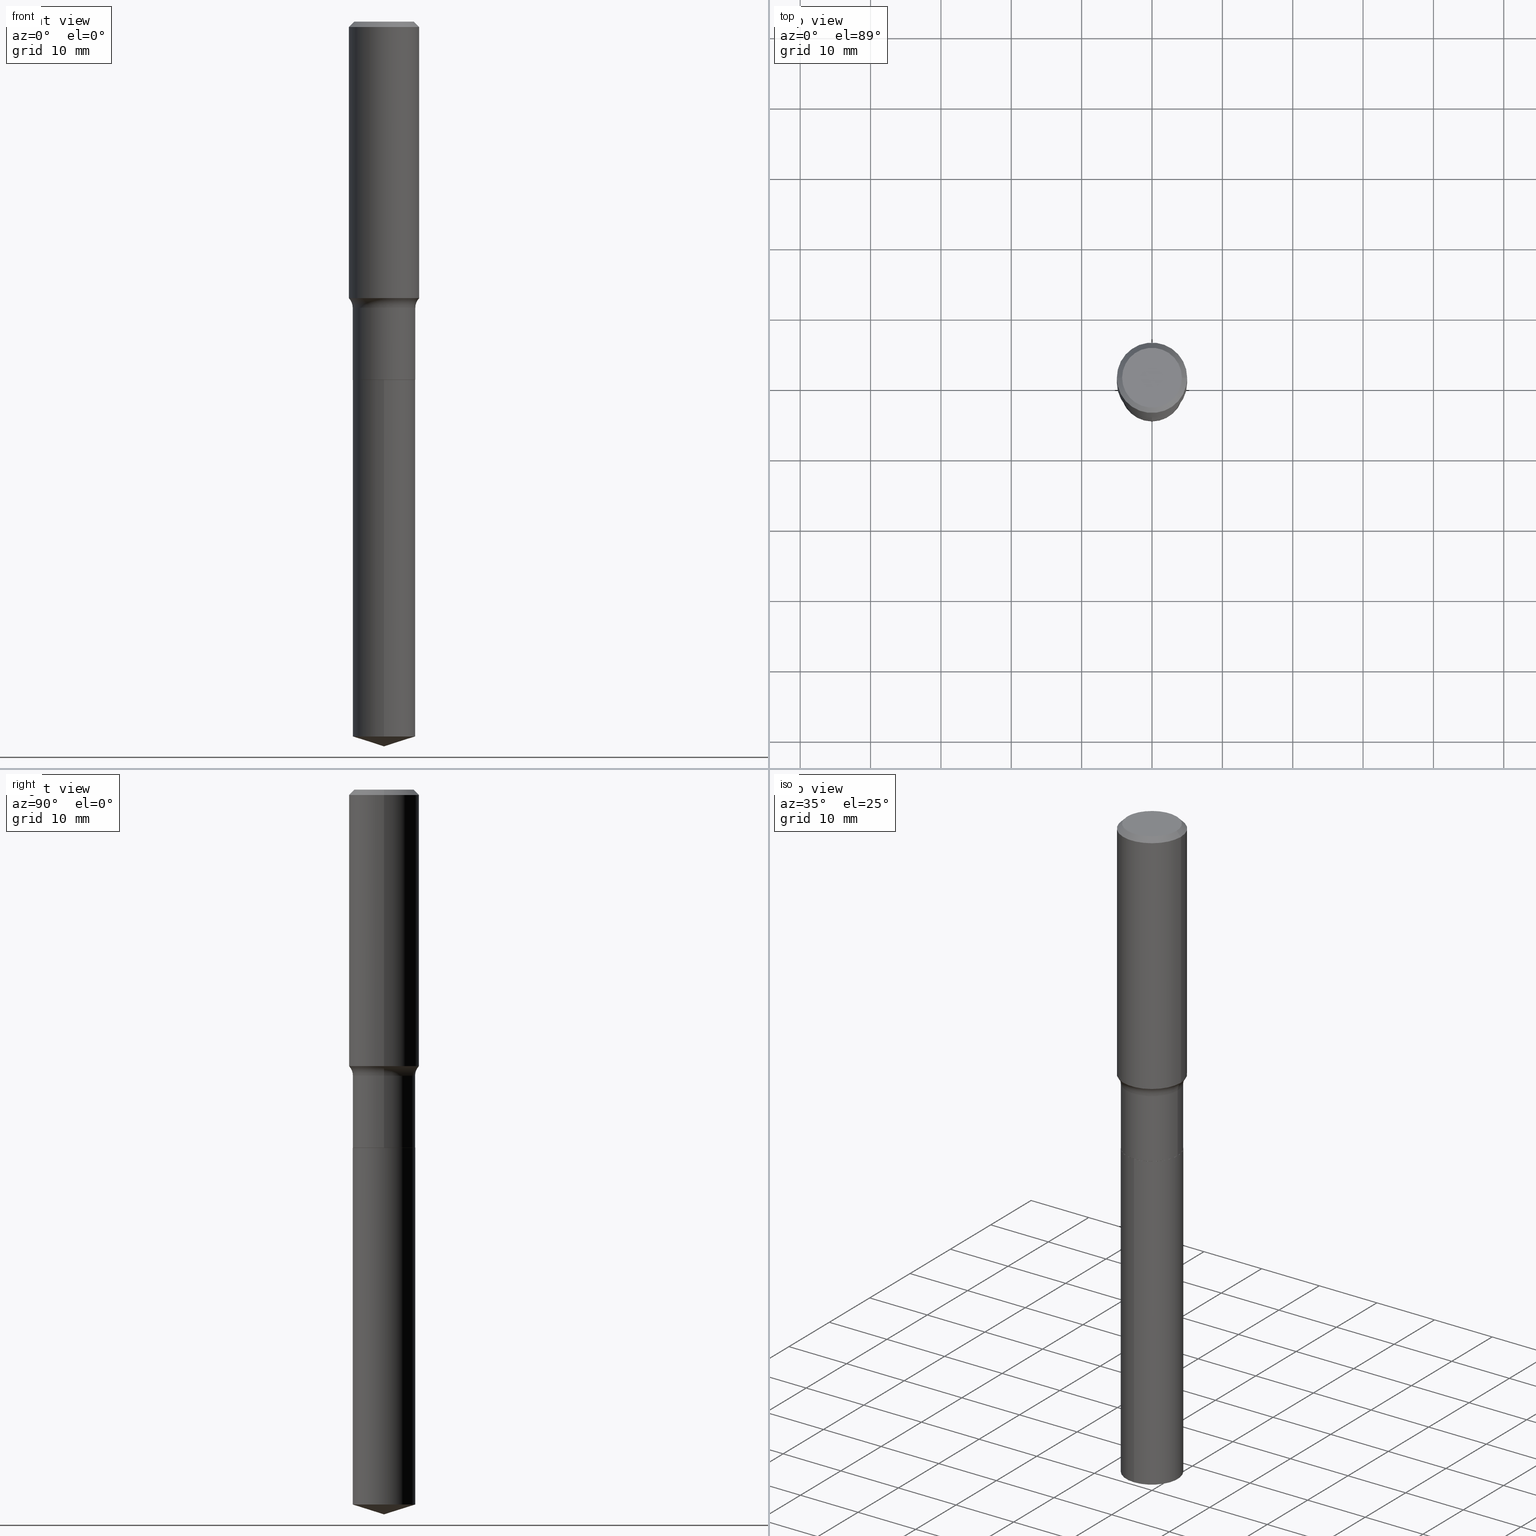
[diagram: canonical four-view strip — front | top / right | iso, engineering-drawing reading convention]
A machine part, canonical four-view strip (front | top / right | iso — engineering-drawing reading convention). The complete STEP part file that produces these views, byte-faithful:
ISO-10303-21;
HEADER;
FILE_DESCRIPTION (( 'STEP AP203' ),
    '1' );
FILE_NAME ('64162.STEP',
    '2024-04-19T15:24:45',
    ( '' ),
    ( '' ),
    'SwSTEP 2.0',
    'SolidWorks 2023',
    '' );
FILE_SCHEMA (( 'CONFIG_CONTROL_DESIGN' ));
ENDSEC;

DATA;
#1 = CARTESIAN_POINT ( 'NONE',  ( 4.900474940714395139E-29, -6.996579454907778893E-15, -2.003899999999999793 ) ) ;
#2 = DIRECTION ( 'NONE',  ( -2.445468806185136597E-29, 3.491481338843145583E-15, 1.000000000000000000 ) ) ;
#3 = CARTESIAN_POINT ( 'NONE',  ( -1.001697619218021790E-46, 1.430158722866389718E-32, 4.096137381448108366E-18 ) ) ;
#4 = APPLICATION_CONTEXT ( 'configuration controlled 3d designs of mechanical parts and assemblies' ) ;
#5 = AXIS2_PLACEMENT_3D ( 'NONE', #77, #268, #272 ) ;
#6 = FACE_OUTER_BOUND ( 'NONE', #478, .T. ) ;
#7 = ADVANCED_FACE ( 'NONE', ( #14 ), #341, .T. ) ;
#8 = EDGE_LOOP ( 'NONE', ( #85, #20, #34, #431 ) ) ;
#9 = ORIENTED_EDGE ( 'NONE', *, *, #379, .F. ) ;
#10 = AXIS2_PLACEMENT_3D ( 'NONE', #1, #141, #183 ) ;
#11 = CC_DESIGN_APPROVAL ( #79, ( #27 ) ) ;
#12 = PERSON ( 'UNSPECIFIED', 'UNSPECIFIED', 'UNSPECIFIED', ('UNSPECIFIED'), ('UNSPECIFIED'), ('UNSPECIFIED') ) ;
#13 = CARTESIAN_POINT ( 'NONE',  ( -0.1968500000000001915, -4.002505982180359837E-15, -1.546967843543948229 ) ) ;
#14 = FACE_OUTER_BOUND ( 'NONE', #471, .T. ) ;
#15 = CC_DESIGN_DATE_AND_TIME_ASSIGNMENT ( #171, #244, ( #27 ) ) ;
#16 = APPLICATION_PROTOCOL_DEFINITION ( 'international standard', 'config_control_design', 1994, #426 ) ;
#17 = DIRECTION ( 'NONE',  ( -2.445552792741590533E-29, 3.491361065314085564E-15, 1.000000000000000000 ) ) ;
#18 = DIRECTION ( 'NONE',  ( 1.000000000000000000, -6.982962677686266711E-15, 4.876176775795935793E-29 ) ) ;
#19 = AXIS2_PLACEMENT_3D ( 'NONE', #237, #398, #187 ) ;
#20 = ORIENTED_EDGE ( 'NONE', *, *, #371, .T. ) ;
#21 = COORDINATED_UNIVERSAL_TIME_OFFSET ( 5, 0, .BEHIND. ) ;
#22 = LINE ( 'NONE', #163, #172 ) ;
#23 = ADVANCED_BREP_SHAPE_REPRESENTATION ( '64162', ( #43, #388, #352 ), #145 ) ;
#24 = CARTESIAN_POINT ( 'NONE',  ( 0.1968500000000000527, -1.477690918335233688E-15, -0.02952750000000022024 ) ) ;
#25 = EDGE_LOOP ( 'NONE', ( #211, #214, #338, #383 ) ) ;
#26 = DATE_AND_TIME ( #157, #342 ) ;
#27 = PRODUCT_DEFINITION ( 'UNKNOWN', '', #418, #489 ) ;
#28 = VERTEX_POINT ( 'NONE', #194 ) ;
#29 = CALENDAR_DATE ( 2024, 19, 4 ) ;
#30 = VECTOR ( 'NONE', #456, 39.37007874015748143 ) ;
#31 = EDGE_CURVE ( 'NONE', #434, #438, #274, .T. ) ;
#32 = LINE ( 'NONE', #33, #176 ) ;
#33 = CARTESIAN_POINT ( 'NONE',  ( 1.244870873051744200E-15, 0.1751999999999929725, -2.003900000000000237 ) ) ;
#34 = ORIENTED_EDGE ( 'NONE', *, *, #475, .T. ) ;
#35 = CONICAL_SURFACE ( 'NONE', #10, 0.1746999999999999942, 0.7853981633975507526 ) ;
#36 = LINE ( 'NONE', #322, #38 ) ;
#37 = VECTOR ( 'NONE', #196, 39.37007874015748143 ) ;
#38 = VECTOR ( 'NONE', #397, 39.37007874015748143 ) ;
#39 = EDGE_CURVE ( 'NONE', #235, #476, #377, .T. ) ;
#40 = ORIENTED_EDGE ( 'NONE', *, *, #191, .T. ) ;
#41 = CARTESIAN_POINT ( 'NONE',  ( 4.899252206311302338E-29, -6.994833714238357390E-15, -2.003400000000000070 ) ) ;
#42 = FACE_OUTER_BOUND ( 'NONE', #225, .T. ) ;
#43 = MANIFOLD_SOLID_BREP ( 'Body-Move/Copy2[1]', #197 ) ;
#44 = EDGE_LOOP ( 'NONE', ( #419, #306, #263, #323 ) ) ;
#45 = LINE ( 'NONE', #314, #227 ) ;
#46 = DIRECTION ( 'NONE',  ( -2.438088387897960049E-29, 3.491481338843145188E-15, 1.000000000000000000 ) ) ;
#47 = VERTEX_POINT ( 'NONE', #308 ) ;
#48 = ADVANCED_FACE ( 'NONE', ( #276 ), #345, .F. ) ;
#49 = CIRCLE ( 'NONE', #74, 0.1968500000000000527 ) ;
#50 = APPROVAL_PERSON_ORGANIZATION ( #255, #79, #280 ) ;
#51 = FACE_OUTER_BOUND ( 'NONE', #298, .T. ) ;
#52 = CYLINDRICAL_SURFACE ( 'NONE', #253, 0.1751999999999999391 ) ;
#53 = VERTEX_POINT ( 'NONE', #13 ) ;
#54 = CALENDAR_DATE ( 2024, 19, 4 ) ;
#55 = LINE ( 'NONE', #164, #319 ) ;
#56 = AXIS2_PLACEMENT_3D ( 'NONE', #59, #17, #281 ) ;
#57 = ORIENTED_EDGE ( 'NONE', *, *, #179, .F. ) ;
#58 = EDGE_CURVE ( 'NONE', #403, #434, #137, .T. ) ;
#59 = CARTESIAN_POINT ( 'NONE',  ( 4.900474940714395139E-29, -6.996579454907778893E-15, -2.003899999999999793 ) ) ;
#60 = ORIENTED_EDGE ( 'NONE', *, *, #464, .F. ) ;
#61 = PERSON_AND_ORGANIZATION ( #12, #65 ) ;
#62 = ORIENTED_EDGE ( 'NONE', *, *, #386, .T. ) ;
#63 = CARTESIAN_POINT ( 'NONE',  ( 7.220858017463216492E-31, -1.030947152326917595E-16, -0.02952750000000022024 ) ) ;
#64 = AXIS2_PLACEMENT_3D ( 'NONE', #343, #147, #233 ) ;
#65 = ORGANIZATION ( 'UNSPECIFIED', 'UNSPECIFIED', '' ) ;
#66 = DIRECTION ( 'NONE',  ( -2.445468806185136597E-29, 3.491481338843145583E-15, 1.000000000000000000 ) ) ;
#67 = CARTESIAN_POINT ( 'NONE',  ( 4.900474940714395139E-29, -6.996579454907778893E-15, -2.003899999999999793 ) ) ;
#68 = ORIENTED_EDGE ( 'NONE', *, *, #118, .T. ) ;
#69 = EDGE_CURVE ( 'NONE', #53, #240, #428, .T. ) ;
#70 = CARTESIAN_POINT ( 'NONE',  ( 0.1746999999999999942, -8.216503034699569763E-15, -2.003899999999999793 ) ) ;
#71 = DIRECTION ( 'NONE',  ( 2.438088387897960049E-29, -3.491481338843145188E-15, -1.000000000000000000 ) ) ;
#72 = AXIS2_PLACEMENT_3D ( 'NONE', #231, #2, #142 ) ;
#73 = CARTESIAN_POINT ( 'NONE',  ( -5.008488096090108951E-47, 7.150793614331948590E-33, 2.048068690724054183E-18 ) ) ;
#74 = AXIS2_PLACEMENT_3D ( 'NONE', #358, #159, #320 ) ;
#75 = DIRECTION ( 'NONE',  ( -6.982962677686265133E-15, -1.000000000000000000, 3.118547937972903315E-15 ) ) ;
#76 = DIRECTION ( 'NONE',  ( -6.982962677686265133E-15, -1.000000000000000000, 3.118547937972903315E-15 ) ) ;
#77 = CARTESIAN_POINT ( 'NONE',  ( -8.636481318426250876E-28, 1.232971007796556247E-13, 35.31497874015747840 ) ) ;
#78 = DIRECTION ( 'NONE',  ( 1.000000000000000000, -6.982962677686266711E-15, 4.883557194083112901E-29 ) ) ;
#79 = APPROVAL ( #285, 'UNSPECIFIED' ) ;
#80 = DIRECTION ( 'NONE',  ( -0.7071067811865454633, 2.468850131082235761E-15, -0.7071067811865493491 ) ) ;
#81 = CIRCLE ( 'NONE', #468, 0.1673224999999999851 ) ;
#82 = VERTEX_POINT ( 'NONE', #305 ) ;
#83 = FACE_OUTER_BOUND ( 'NONE', #254, .T. ) ;
#84 = PERSON_AND_ORGANIZATION_ROLE ( 'classification_officer' ) ;
#85 = ORIENTED_EDGE ( 'NONE', *, *, #420, .F. ) ;
#86 = FACE_OUTER_BOUND ( 'NONE', #277, .T. ) ;
#87 = DIRECTION ( 'NONE',  ( -2.445552792741590533E-29, 3.491361065314085564E-15, 1.000000000000000000 ) ) ;
#88 = ORIENTED_EDGE ( 'NONE', *, *, #360, .F. ) ;
#89 = DATE_AND_TIME ( #54, #265 ) ;
#90 = CARTESIAN_POINT ( 'NONE',  ( 0.1751999999999999391, -1.223415061130633483E-15, 8.543061711194476516E-30 ) ) ;
#91 = AXIS2_PLACEMENT_3D ( 'NONE', #193, #149, #307 ) ;
#92 = ORIENTED_EDGE ( 'NONE', *, *, #169, .T. ) ;
#93 = PERSON_AND_ORGANIZATION_ROLE ( 'design_supplier' ) ;
#94 = AXIS2_PLACEMENT_3D ( 'NONE', #462, #121, #266 ) ;
#95 = DIRECTION ( 'NONE',  ( -2.445552792741590533E-29, 3.491361065314085564E-15, 1.000000000000000000 ) ) ;
#96 = APPLICATION_PROTOCOL_DEFINITION ( 'international standard', 'config_control_design', 1994, #4 ) ;
#97 = ADVANCED_FACE ( 'NONE', ( #42 ), #190, .T. ) ;
#98 = FACE_OUTER_BOUND ( 'NONE', #290, .T. ) ;
#99 = CARTESIAN_POINT ( 'NONE',  ( 3.914951011821784364E-29, -5.589512475353991008E-15, -1.600899999999999768 ) ) ;
#100 = FACE_OUTER_BOUND ( 'NONE', #126, .T. ) ;
#101 = CARTESIAN_POINT ( 'NONE',  ( 4.900474940714395139E-29, -6.996579454907778893E-15, -2.003899999999999793 ) ) ;
#102 = AXIS2_PLACEMENT_3D ( 'NONE', #63, #474, #406 ) ;
#103 = CIRCLE ( 'NONE', #210, 0.1968500000000001915 ) ;
#104 = DIRECTION ( 'NONE',  ( 6.982962677686265922E-15, 1.000000000000000000, -3.491361065314085564E-15 ) ) ;
#105 = EDGE_LOOP ( 'NONE', ( #57, #355, #161 ) ) ;
#106 = EDGE_CURVE ( 'NONE', #403, #240, #22, .T. ) ;
#107 = PLANE ( 'NONE',  #461 ) ;
#108 = CARTESIAN_POINT ( 'NONE',  ( 7.220858017463216492E-31, -1.030947152326917595E-16, -0.02952750000000022024 ) ) ;
#109 = AXIS2_PLACEMENT_3D ( 'NONE', #218, #411, #440 ) ;
#110 = DIRECTION ( 'NONE',  ( 1.000000000000000000, -6.982962677686265133E-15, 0.000000000000000000 ) ) ;
#111 = ADVANCED_FACE ( 'NONE', ( #416 ), #35, .T. ) ;
#112 = ORIENTED_EDGE ( 'NONE', *, *, #414, .T. ) ;
#113 = DIRECTION ( 'NONE',  ( 1.000000000000000000, -6.982962677686263555E-15, 0.000000000000000000 ) ) ;
#114 = ORIENTED_EDGE ( 'NONE', *, *, #371, .F. ) ;
#115 = DIRECTION ( 'NONE',  ( 1.000000000000000000, -6.982962677686266711E-15, 0.000000000000000000 ) ) ;
#116 = DIRECTION ( 'NONE',  ( -2.445468806185136597E-29, 3.491481338843145583E-15, 1.000000000000000000 ) ) ;
#117 = CIRCLE ( 'NONE', #375, 0.1751999999999999946 ) ;
#118 = EDGE_CURVE ( 'NONE', #28, #482, #417, .T. ) ;
#119 = ORIENTED_EDGE ( 'NONE', *, *, #432, .F. ) ;
#120 = ORIENTED_EDGE ( 'NONE', *, *, #492, .F. ) ;
#121 = DIRECTION ( 'NONE',  ( -2.445552792741590533E-29, 3.491361065314085564E-15, 1.000000000000000000 ) ) ;
#122 = CALENDAR_DATE ( 2024, 19, 4 ) ;
#123 = FACE_OUTER_BOUND ( 'NONE', #44, .T. ) ;
#124 = LOCAL_TIME ( 11, 24, 45.00000000000000000, #21 ) ;
#125 = DATE_AND_TIME ( #212, #124 ) ;
#126 = EDGE_LOOP ( 'NONE', ( #220, #391, #92, #318 ) ) ;
#127 = LINE ( 'NONE', #283, #412 ) ;
#128 = ORIENTED_EDGE ( 'NONE', *, *, #409, .T. ) ;
#129 = PERSON_AND_ORGANIZATION ( #12, #65 ) ;
#130 = EDGE_CURVE ( 'NONE', #421, #47, #278, .T. ) ;
#131 = AXIS2_PLACEMENT_3D ( 'NONE', #249, #206, #238 ) ;
#132 = LOCAL_TIME ( 11, 24, 45.00000000000000000, #256 ) ;
#133 = ORIENTED_EDGE ( 'NONE', *, *, #130, .F. ) ;
#134 = DIRECTION ( 'NONE',  ( -2.445468806185136597E-29, 3.491481338843145583E-15, 1.000000000000000000 ) ) ;
#135 = ORIENTED_EDGE ( 'NONE', *, *, #492, .T. ) ;
#136 = LINE ( 'NONE', #389, #234 ) ;
#137 = CIRCLE ( 'NONE', #19, 0.1751999999999999946 ) ;
#138 = CONICAL_SURFACE ( 'NONE', #5, 124.8659371009155450, 1.265363707695892792 ) ;
#139 = CARTESIAN_POINT ( 'NONE',  ( 4.900474940714395139E-29, -6.996579454907778893E-15, -2.003899999999999793 ) ) ;
#140 = EDGE_CURVE ( 'NONE', #47, #482, #136, .T. ) ;
#141 = DIRECTION ( 'NONE',  ( -2.445468806185136597E-29, 3.491481338843145583E-15, 1.000000000000000000 ) ) ;
#142 = DIRECTION ( 'NONE',  ( 1.000000000000000000, -6.982962677686265922E-15, 0.000000000000000000 ) ) ;
#143 = CARTESIAN_POINT ( 'NONE',  ( 3.914951011821784364E-29, -5.589512475353991008E-15, -1.600899999999999768 ) ) ;
#144 = ORIENTED_EDGE ( 'NONE', *, *, #400, .F. ) ;
#145 =( GEOMETRIC_REPRESENTATION_CONTEXT ( 3 ) GLOBAL_UNCERTAINTY_ASSIGNED_CONTEXT ( ( #181 ) ) GLOBAL_UNIT_ASSIGNED_CONTEXT ( ( #340, #425, #229 ) ) REPRESENTATION_CONTEXT ( 'NONE', 'WORKASPACE' ) );
#146 = CC_DESIGN_PERSON_AND_ORGANIZATION_ASSIGNMENT ( #129, #439, ( #418 ) ) ;
#147 = DIRECTION ( 'NONE',  ( 7.105427357601001859E-15, 1.000000000000000000, -3.491481338843145583E-15 ) ) ;
#148 = ORIENTED_EDGE ( 'NONE', *, *, #360, .T. ) ;
#149 = DIRECTION ( 'NONE',  ( -2.445552792741590533E-29, 3.491361065314085564E-15, 1.000000000000000000 ) ) ;
#150 = CARTESIAN_POINT ( 'NONE',  ( 3.783061605558214403E-29, -5.401209357524118413E-15, -1.546967843543948229 ) ) ;
#151 = ADVANCED_FACE ( 'NONE', ( #123 ), #356, .T. ) ;
#152 = CARTESIAN_POINT ( 'NONE',  ( 3.914951011821784364E-29, -5.589512475353991008E-15, -1.600899999999999768 ) ) ;
#153 = AXIS2_PLACEMENT_3D ( 'NONE', #458, #452, #75 ) ;
#154 = CIRCLE ( 'NONE', #424, 0.1751999999999999391 ) ;
#155 = DIRECTION ( 'NONE',  ( 1.000000000000000000, -6.982962677686265922E-15, 4.876176775795935793E-29 ) ) ;
#156 = ADVANCED_FACE ( 'NONE', ( #83 ), #52, .T. ) ;
#157 = CALENDAR_DATE ( 2024, 19, 4 ) ;
#158 = ORIENTED_EDGE ( 'NONE', *, *, #130, .T. ) ;
#159 = DIRECTION ( 'NONE',  ( -2.445468806185136597E-29, 3.491481338843145583E-15, 1.000000000000000000 ) ) ;
#160 = CLOSED_SHELL ( 'NONE', ( #459, #201, #151, #184, #484, #156, #228, #213, #7, #450, #48, #111 ) ) ;
#161 = ORIENTED_EDGE ( 'NONE', *, *, #251, .F. ) ;
#162 = SHAPE_DEFINITION_REPRESENTATION ( #443, #23 ) ;
#163 = CARTESIAN_POINT ( 'NONE',  ( -0.1751999999999999391, 1.244870873051695093E-15, -8.617974278126592972E-30 ) ) ;
#164 = CARTESIAN_POINT ( 'NONE',  ( -0.1968500000000000527, 1.271501487869850317E-15, -0.02952750000000022024 ) ) ;
#165 = CARTESIAN_POINT ( 'NONE',  ( -0.1673224999999999851, 1.219954130253505460E-15, 4.096137381439757534E-18 ) ) ;
#166 = DIRECTION ( 'NONE',  ( -2.445468806185136597E-29, 3.491481338843145583E-15, 1.000000000000000000 ) ) ;
#167 = MECHANICAL_CONTEXT ( 'NONE', #426, 'mechanical' ) ;
#168 = FACE_OUTER_BOUND ( 'NONE', #8, .T. ) ;
#169 = EDGE_CURVE ( 'NONE', #482, #28, #49, .T. ) ;
#170 = CC_DESIGN_PERSON_AND_ORGANIZATION_ASSIGNMENT ( #477, #93, ( #418 ) ) ;
#171 = DATE_AND_TIME ( #122, #132 ) ;
#172 = VECTOR ( 'NONE', #472, 39.37007874015748143 ) ;
#173 = CIRCLE ( 'NONE', #405, 0.1746999999999999942 ) ;
#174 = ORIENTED_EDGE ( 'NONE', *, *, #437, .F. ) ;
#175 = PERSON_AND_ORGANIZATION_ROLE ( 'creator' ) ;
#176 = VECTOR ( 'NONE', #95, 39.37007874015748143 ) ;
#177 = ORIENTED_EDGE ( 'NONE', *, *, #31, .F. ) ;
#178 = DIRECTION ( 'NONE',  ( -2.445552792741590533E-29, 3.491361065314085564E-15, 1.000000000000000000 ) ) ;
#179 = EDGE_CURVE ( 'NONE', #235, #82, #127, .T. ) ;
#180 = CIRCLE ( 'NONE', #153, 0.1751999999999999946 ) ;
#181 = UNCERTAINTY_MEASURE_WITH_UNIT (LENGTH_MEASURE( 1.000000000000000082E-05 ), #340, 'distance_accuracy_value', 'NONE');
#182 = VECTOR ( 'NONE', #87, 39.37007874015748143 ) ;
#183 = DIRECTION ( 'NONE',  ( 1.000000000000000000, -6.982962677686265922E-15, 0.000000000000000000 ) ) ;
#184 = ADVANCED_FACE ( 'NONE', ( #86 ), #466, .F. ) ;
#185 = ORIENTED_EDGE ( 'NONE', *, *, #31, .T. ) ;
#186 = FACE_OUTER_BOUND ( 'NONE', #105, .T. ) ;
#187 = DIRECTION ( 'NONE',  ( 1.000000000000000000, -6.982962677686263555E-15, 0.000000000000000000 ) ) ;
#188 = LOCAL_TIME ( 11, 24, 45.00000000000000000, #275 ) ;
#189 = ORIENTED_EDGE ( 'NONE', *, *, #393, .F. ) ;
#190 = CYLINDRICAL_SURFACE ( 'NONE', #56, 0.1751999999999999946 ) ;
#191 = EDGE_CURVE ( 'NONE', #421, #28, #55, .T. ) ;
#192 = CARTESIAN_POINT ( 'NONE',  ( 0.1751999999999999946, -8.218248775368990478E-15, -2.003400000000000070 ) ) ;
#193 = CARTESIAN_POINT ( 'NONE',  ( -8.636481318426250876E-28, 1.232971007796556247E-13, 35.31497874015747840 ) ) ;
#194 = CARTESIAN_POINT ( 'NONE',  ( -0.1968500000000000527, -1.353448661034646867E-15, -0.02952750000000022024 ) ) ;
#195 = DIRECTION ( 'NONE',  ( 0.7071067811865454633, -7.319954787623246579E-15, -0.7071067811865493491 ) ) ;
#196 = DIRECTION ( 'NONE',  ( -0.7071067811866199593, 7.493145998870616062E-15, 0.7071067811864750752 ) ) ;
#197 = CLOSED_SHELL ( 'NONE', ( #97, #236, #269, #273, #348 ) ) ;
#198 = APPROVAL_PERSON_ORGANIZATION ( #61, #246, #205 ) ;
#199 = CARTESIAN_POINT ( 'NONE',  ( 4.900474940714395139E-29, -6.996579454907778893E-15, -2.003899999999999793 ) ) ;
#200 = CARTESIAN_POINT ( 'NONE',  ( 3.914951011821784364E-29, -5.589512475353991008E-15, -1.600899999999999768 ) ) ;
#201 = ADVANCED_FACE ( 'NONE', ( #100 ), #258, .T. ) ;
#202 = CYLINDRICAL_SURFACE ( 'NONE', #336, 0.1751999999999999391 ) ;
#203 = EDGE_LOOP ( 'NONE', ( #158, #112 ) ) ;
#204 = DIRECTION ( 'NONE',  ( 1.000000000000000000, -6.982962677686266711E-15, 4.876176775795935793E-29 ) ) ;
#205 = APPROVAL_ROLE ( '' ) ;
#206 = DIRECTION ( 'NONE',  ( 2.445468806185136597E-29, -3.491481338843145583E-15, -1.000000000000000000 ) ) ;
#207 = DIRECTION ( 'NONE',  ( -2.445468806185136597E-29, 3.491481338843145583E-15, 1.000000000000000000 ) ) ;
#208 = CARTESIAN_POINT ( 'NONE',  ( -0.1751999999999999946, -5.047302221744479303E-15, -2.003400000000000070 ) ) ;
#209 = TOROIDAL_SURFACE ( 'NONE', #270, 0.2531999999999999251, 0.07799999999999995826 ) ;
#210 = AXIS2_PLACEMENT_3D ( 'NONE', #150, #310, #115 ) ;
#211 = ORIENTED_EDGE ( 'NONE', *, *, #69, .F. ) ;
#212 = CALENDAR_DATE ( 2024, 19, 4 ) ;
#213 = ADVANCED_FACE ( 'NONE', ( #168 ), #485, .T. ) ;
#214 = ORIENTED_EDGE ( 'NONE', *, *, #447, .F. ) ;
#215 = APPROVAL_DATE_TIME ( #125, #246 ) ;
#216 = CC_DESIGN_PERSON_AND_ORGANIZATION_ASSIGNMENT ( #401, #84, ( #481 ) ) ;
#217 = ORIENTED_EDGE ( 'NONE', *, *, #58, .F. ) ;
#218 = CARTESIAN_POINT ( 'NONE',  ( 0.2531999999999999251, -7.357598625344153720E-15, -1.600899999999999768 ) ) ;
#219 = CIRCLE ( 'NONE', #365, 0.1751999999999999946 ) ;
#220 = ORIENTED_EDGE ( 'NONE', *, *, #414, .F. ) ;
#221 = DIRECTION ( 'NONE',  ( -2.445552792741590533E-29, 3.491361065314085564E-15, 1.000000000000000000 ) ) ;
#222 = DIRECTION ( 'NONE',  ( 1.000000000000000000, -6.982962677686266711E-15, 4.876176775795935793E-29 ) ) ;
#223 = EDGE_CURVE ( 'NONE', #438, #240, #226, .T. ) ;
#224 = CARTESIAN_POINT ( 'NONE',  ( 4.900474940714395139E-29, -6.996579454907778893E-15, -2.003899999999999793 ) ) ;
#225 = EDGE_LOOP ( 'NONE', ( #367, #282, #174, #144 ) ) ;
#226 = CIRCLE ( 'NONE', #390, 0.1751999999999999391 ) ;
#227 = VECTOR ( 'NONE', #364, 39.37007874015748143 ) ;
#228 = ADVANCED_FACE ( 'NONE', ( #344 ), #209, .F. ) ;
#229 =( NAMED_UNIT ( * ) SI_UNIT ( $, .STERADIAN. ) SOLID_ANGLE_UNIT ( ) );
#230 = CC_DESIGN_PERSON_AND_ORGANIZATION_ASSIGNMENT ( #408, #175, ( #27 ) ) ;
#231 = CARTESIAN_POINT ( 'NONE',  ( 4.900474940714395139E-29, -6.996579454907778893E-15, -2.003899999999999793 ) ) ;
#232 = LINE ( 'NONE', #302, #182 ) ;
#233 = DIRECTION ( 'NONE',  ( -1.000000000000000000, 7.105427357601001859E-15, 0.000000000000000000 ) ) ;
#234 = VECTOR ( 'NONE', #195, 39.37007874015748854 ) ;
#235 = VERTEX_POINT ( 'NONE', #392 ) ;
#236 = ADVANCED_FACE ( 'NONE', ( #6 ), #312, .T. ) ;
#237 = CARTESIAN_POINT ( 'NONE',  ( 4.899252206311302338E-29, -6.994833714238357390E-15, -2.003400000000000070 ) ) ;
#238 = DIRECTION ( 'NONE',  ( -1.000000000000000000, 6.982962677686266711E-15, 0.000000000000000000 ) ) ;
#239 = FACE_OUTER_BOUND ( 'NONE', #491, .T. ) ;
#240 = VERTEX_POINT ( 'NONE', #299 ) ;
#241 = DIRECTION ( 'NONE',  ( 0.7071067811866199593, -2.468850131083015945E-15, 0.7071067811864750752 ) ) ;
#242 = DIRECTION ( 'NONE',  ( -6.659769872151635244E-15, -0.9537169507482271547, 0.3007057995042727860 ) ) ;
#243 = CIRCLE ( 'NONE', #430, 0.1746999999999999942 ) ;
#244 = DATE_TIME_ROLE ( 'creation_date' ) ;
#245 = CARTESIAN_POINT ( 'NONE',  ( 0.000000000000000000, 0.000000000000000000, 0.000000000000000000 ) ) ;
#246 = APPROVAL ( #436, 'UNSPECIFIED' ) ;
#247 = CARTESIAN_POINT ( 'NONE',  ( 9.916624528525467552E-29, -1.415830028820491672E-14, -4.055100000000000371 ) ) ;
#248 = ORIENTED_EDGE ( 'NONE', *, *, #251, .T. ) ;
#249 = CARTESIAN_POINT ( 'NONE',  ( 7.220858017463216492E-31, -1.030947152326917595E-16, -0.02952750000000022024 ) ) ;
#250 = CARTESIAN_POINT ( 'NONE',  ( -0.1746999999999999942, -5.755261295534884896E-15, -2.003899999999999793 ) ) ;
#251 = EDGE_CURVE ( 'NONE', #82, #476, #180, .T. ) ;
#252 = ORIENTED_EDGE ( 'NONE', *, *, #264, .T. ) ;
#253 = AXIS2_PLACEMENT_3D ( 'NONE', #245, #469, #18 ) ;
#254 = EDGE_LOOP ( 'NONE', ( #316, #445, #185, #189 ) ) ;
#255 = PERSON_AND_ORGANIZATION ( #12, #65 ) ;
#256 = COORDINATED_UNIVERSAL_TIME_OFFSET ( 5, 0, .BEHIND. ) ;
#257 = DIRECTION ( 'NONE',  ( 2.445552792741590253E-29, -3.491361065314085564E-15, -1.000000000000000000 ) ) ;
#258 = CONICAL_SURFACE ( 'NONE', #102, 0.1968500000000000527, 0.7853981633974456145 ) ;
#259 = CIRCLE ( 'NONE', #94, 0.1751999999999999946 ) ;
#260 = CC_DESIGN_DATE_AND_TIME_ASSIGNMENT ( #89, #328, ( #481 ) ) ;
#261 = ORIENTED_EDGE ( 'NONE', *, *, #179, .T. ) ;
#262 = DIRECTION ( 'NONE',  ( -2.445468806185136597E-29, 3.491481338843145583E-15, 1.000000000000000000 ) ) ;
#263 = ORIENTED_EDGE ( 'NONE', *, *, #169, .F. ) ;
#264 = EDGE_CURVE ( 'NONE', #434, #403, #117, .T. ) ;
#265 = LOCAL_TIME ( 11, 24, 45.00000000000000000, #368 ) ;
#266 = DIRECTION ( 'NONE',  ( -6.982962677686265133E-15, -1.000000000000000000, 3.118547937972903315E-15 ) ) ;
#267 = DIRECTION ( 'NONE',  ( 1.000000000000000000, -6.982962677686265133E-15, 0.000000000000000000 ) ) ;
#268 = DIRECTION ( 'NONE',  ( -2.445552792741590533E-29, 3.491361065314085564E-15, 1.000000000000000000 ) ) ;
#269 = ADVANCED_FACE ( 'NONE', ( #186 ), #138, .T. ) ;
#270 = AXIS2_PLACEMENT_3D ( 'NONE', #143, #460, #78 ) ;
#271 = AXIS2_PLACEMENT_3D ( 'NONE', #67, #221, #444 ) ;
#272 = DIRECTION ( 'NONE',  ( -6.982962677686266711E-15, -1.000000000000000000, 3.500519750498691021E-15 ) ) ;
#273 = ADVANCED_FACE ( 'NONE', ( #239 ), #350, .T. ) ;
#274 = LINE ( 'NONE', #90, #30 ) ;
#275 = COORDINATED_UNIVERSAL_TIME_OFFSET ( 5, 0, .BEHIND. ) ;
#276 = FACE_OUTER_BOUND ( 'NONE', #455, .T. ) ;
#277 = EDGE_LOOP ( 'NONE', ( #114, #449, #294, #380 ) ) ;
#278 = CIRCLE ( 'NONE', #362, 0.1673224999999999851 ) ;
#279 = CARTESIAN_POINT ( 'NONE',  ( 0.000000000000000000, 0.000000000000000000, 0.000000000000000000 ) ) ;
#280 = APPROVAL_ROLE ( '' ) ;
#281 = DIRECTION ( 'NONE',  ( -6.982962677686265133E-15, -1.000000000000000000, 3.118547937972903315E-15 ) ) ;
#282 = ORIENTED_EDGE ( 'NONE', *, *, #379, .T. ) ;
#283 = CARTESIAN_POINT ( 'NONE',  ( 9.916964081442683473E-29, -1.415781825595514853E-14, -4.055100000000000371 ) ) ;
#284 = DIRECTION ( 'NONE',  ( -2.445468806185136597E-29, 3.491481338843145583E-15, 1.000000000000000000 ) ) ;
#285 = APPROVAL_STATUS ( 'not_yet_approved' ) ;
#286 = DIRECTION ( 'NONE',  ( 1.000000000000000000, -6.982962677686267499E-15, 4.876294436782262290E-29 ) ) ;
#287 =( LENGTH_UNIT ( ) NAMED_UNIT ( * ) SI_UNIT ( $, .METRE. ) );
#288 = APPROVAL_ROLE ( '' ) ;
#289 = CIRCLE ( 'NONE', #301, 0.1968500000000001915 ) ;
#290 = EDGE_LOOP ( 'NONE', ( #296, #62 ) ) ;
#291 = APPROVAL_STATUS ( 'not_yet_approved' ) ;
#292 = DIRECTION ( 'NONE',  ( 1.000000000000000000, -6.982962677686266711E-15, 0.000000000000000000 ) ) ;
#293 = AXIS2_PLACEMENT_3D ( 'NONE', #101, #257, #104 ) ;
#294 = ORIENTED_EDGE ( 'NONE', *, *, #393, .T. ) ;
#295 = EDGE_CURVE ( 'NONE', #303, #438, #441, .T. ) ;
#296 = ORIENTED_EDGE ( 'NONE', *, *, #437, .T. ) ;
#297 = DIMENSIONAL_EXPONENTS ( 1.000000000000000000, 0.000000000000000000, 0.000000000000000000, 0.000000000000000000, 0.000000000000000000, 0.000000000000000000, 0.000000000000000000 ) ;
#298 = EDGE_LOOP ( 'NONE', ( #252, #415, #410, #177 ) ) ;
#299 = CARTESIAN_POINT ( 'NONE',  ( -0.1751999999999999391, -5.047302221744479303E-15, -1.600899999999999768 ) ) ;
#300 = AXIS2_PLACEMENT_3D ( 'NONE', #108, #422, #384 ) ;
#301 = AXIS2_PLACEMENT_3D ( 'NONE', #487, #134, #292 ) ;
#302 = CARTESIAN_POINT ( 'NONE',  ( -1.223415061130584771E-15, -0.1752000000000069890, -2.003899999999999348 ) ) ;
#303 = VERTEX_POINT ( 'NONE', #335 ) ;
#304 = LENGTH_MEASURE_WITH_UNIT ( LENGTH_MEASURE( 0.02539999999999999897 ), #287 );
#305 = CARTESIAN_POINT ( 'NONE',  ( 1.244870873051792715E-15, 0.1751999999999859225, -3.999859652188403558 ) ) ;
#306 = ORIENTED_EDGE ( 'NONE', *, *, #420, .T. ) ;
#307 = DIRECTION ( 'NONE',  ( -6.982962677686266711E-15, -1.000000000000000000, 3.500519750498691021E-15 ) ) ;
#308 = CARTESIAN_POINT ( 'NONE',  ( 0.1673224999999999851, -1.300749711163072594E-15, 4.096137381456741925E-18 ) ) ;
#309 = ORIENTED_EDGE ( 'NONE', *, *, #140, .F. ) ;
#310 = DIRECTION ( 'NONE',  ( -2.445468806185136597E-29, 3.491481338843145583E-15, 1.000000000000000000 ) ) ;
#311 = DIRECTION ( 'NONE',  ( -2.445468806185136597E-29, 3.491481338843145583E-15, 1.000000000000000000 ) ) ;
#312 = CONICAL_SURFACE ( 'NONE', #91, 124.8659371009155450, 1.265363707695892792 ) ;
#313 = FACE_OUTER_BOUND ( 'NONE', #203, .T. ) ;
#314 = CARTESIAN_POINT ( 'NONE',  ( -0.1968500000000001082, 1.398703375343757985E-15, -9.682923725166787881E-30 ) ) ;
#315 = ORIENTED_EDGE ( 'NONE', *, *, #39, .F. ) ;
#316 = ORIENTED_EDGE ( 'NONE', *, *, #106, .F. ) ;
#317 = DIRECTION ( 'NONE',  ( 1.000000000000000000, 0.000000000000000000, 0.000000000000000000 ) ) ;
#318 = ORIENTED_EDGE ( 'NONE', *, *, #191, .F. ) ;
#319 = VECTOR ( 'NONE', #80, 39.37007874015748854 ) ;
#320 = DIRECTION ( 'NONE',  ( 1.000000000000000000, -6.982962677686266711E-15, 0.000000000000000000 ) ) ;
#321 = AXIS2_PLACEMENT_3D ( 'NONE', #325, #473, #76 ) ;
#322 = CARTESIAN_POINT ( 'NONE',  ( 0.1968500000000001082, -1.374596203102542397E-15, 9.598753983154305062E-30 ) ) ;
#323 = ORIENTED_EDGE ( 'NONE', *, *, #475, .F. ) ;
#324 = PERSON_AND_ORGANIZATION_ROLE ( 'design_owner' ) ;
#325 = CARTESIAN_POINT ( 'NONE',  ( 9.781699642323277748E-29, -1.396519527249621453E-14, -3.999859652188403114 ) ) ;
#326 = DIRECTION ( 'NONE',  ( 1.000000000000000000, -6.982962677686265922E-15, 0.000000000000000000 ) ) ;
#327 = PERSON_AND_ORGANIZATION ( #12, #65 ) ;
#328 = DATE_TIME_ROLE ( 'classification_date' ) ;
#329 = CC_DESIGN_APPROVAL ( #354, ( #481 ) ) ;
#330 = CC_DESIGN_PERSON_AND_ORGANIZATION_ASSIGNMENT ( #327, #324, ( #479 ) ) ;
#331 = CARTESIAN_POINT ( 'NONE',  ( 0.000000000000000000, 0.000000000000000000, 0.000000000000000000 ) ) ;
#332 = VERTEX_POINT ( 'NONE', #333 ) ;
#333 = CARTESIAN_POINT ( 'NONE',  ( -1.223415061130584771E-15, -0.1752000000000069890, -2.003899999999999348 ) ) ;
#334 = DIRECTION ( 'NONE',  ( 1.000000000000000000, -6.982962677686267499E-15, 4.876294436782262290E-29 ) ) ;
#335 = CARTESIAN_POINT ( 'NONE',  ( 0.1968500000000001915, -6.775805560626661599E-15, -1.546967843543948229 ) ) ;
#336 = AXIS2_PLACEMENT_3D ( 'NONE', #357, #284, #402 ) ;
#337 = ORIENTED_EDGE ( 'NONE', *, *, #386, .F. ) ;
#338 = ORIENTED_EDGE ( 'NONE', *, *, #295, .T. ) ;
#339 = FACE_OUTER_BOUND ( 'NONE', #399, .T. ) ;
#340 =( CONVERSION_BASED_UNIT ( 'INCH', #304 ) LENGTH_UNIT ( ) NAMED_UNIT ( #297 ) );
#341 = CONICAL_SURFACE ( 'NONE', #131, 0.1968500000000000527, 0.7853981633974456145 ) ;
#342 = LOCAL_TIME ( 11, 24, 45.00000000000000000, #361 ) ;
#343 = CARTESIAN_POINT ( 'NONE',  ( -0.2531999999999999251, -3.790418268409418263E-15, -1.600899999999999768 ) ) ;
#344 = FACE_OUTER_BOUND ( 'NONE', #25, .T. ) ;
#345 = PLANE ( 'NONE',  #351 ) ;
#346 = ORIENTED_EDGE ( 'NONE', *, *, #264, .F. ) ;
#347 = ORIENTED_EDGE ( 'NONE', *, *, #464, .T. ) ;
#348 = ADVANCED_FACE ( 'NONE', ( #98 ), #446, .F. ) ;
#349 = CARTESIAN_POINT ( 'NONE',  ( -1.001697619218021790E-46, 1.430158722866389718E-32, 4.096137381448108366E-18 ) ) ;
#350 = CYLINDRICAL_SURFACE ( 'NONE', #271, 0.1751999999999999946 ) ;
#351 = AXIS2_PLACEMENT_3D ( 'NONE', #199, #46, #155 ) ;
#352 = AXIS2_PLACEMENT_3D ( 'NONE', #429, #404, #317 ) ;
#353 = CARTESIAN_POINT ( 'NONE',  ( -0.1746999999999999942, -5.752612068360773695E-15, -2.003899999999999793 ) ) ;
#354 = APPROVAL ( #291, 'UNSPECIFIED' ) ;
#355 = ORIENTED_EDGE ( 'NONE', *, *, #39, .T. ) ;
#356 = CYLINDRICAL_SURFACE ( 'NONE', #381, 0.1968500000000001082 ) ;
#357 = CARTESIAN_POINT ( 'NONE',  ( 0.000000000000000000, 0.000000000000000000, 0.000000000000000000 ) ) ;
#358 = CARTESIAN_POINT ( 'NONE',  ( 7.220858017463216492E-31, -1.030947152326917595E-16, -0.02952750000000022024 ) ) ;
#359 = ORIENTED_EDGE ( 'NONE', *, *, #409, .F. ) ;
#360 = EDGE_CURVE ( 'NONE', #465, #387, #243, .T. ) ;
#361 = COORDINATED_UNIVERSAL_TIME_OFFSET ( 5, 0, .BEHIND. ) ;
#362 = AXIS2_PLACEMENT_3D ( 'NONE', #3, #490, #334 ) ;
#363 = DIRECTION ( 'NONE',  ( 1.000000000000000000, -6.982962677686266711E-15, 4.883557194083112901E-29 ) ) ;
#364 = DIRECTION ( 'NONE',  ( -2.445468806185136877E-29, 3.491481338843145188E-15, 1.000000000000000000 ) ) ;
#365 = AXIS2_PLACEMENT_3D ( 'NONE', #139, #178, #370 ) ;
#366 = CARTESIAN_POINT ( 'NONE',  ( 4.900474940714395139E-29, -6.996579454907778893E-15, -2.003899999999999793 ) ) ;
#367 = ORIENTED_EDGE ( 'NONE', *, *, #432, .T. ) ;
#368 = COORDINATED_UNIVERSAL_TIME_OFFSET ( 5, 0, .BEHIND. ) ;
#369 = PERSON_AND_ORGANIZATION ( #12, #65 ) ;
#370 = DIRECTION ( 'NONE',  ( -6.982962677686265133E-15, -1.000000000000000000, 3.118547937972903315E-15 ) ) ;
#371 = EDGE_CURVE ( 'NONE', #53, #303, #289, .T. ) ;
#372 = VERTEX_POINT ( 'NONE', #373 ) ;
#373 = CARTESIAN_POINT ( 'NONE',  ( 1.244870873051793503E-15, 0.1751999999999930280, -2.003900000000000237 ) ) ;
#374 = AXIS2_PLACEMENT_3D ( 'NONE', #200, #207, #363 ) ;
#375 = AXIS2_PLACEMENT_3D ( 'NONE', #41, #116, #113 ) ;
#376 = PRODUCT_RELATED_PRODUCT_CATEGORY ( 'detail', '', ( #479 ) ) ;
#377 = LINE ( 'NONE', #247, #394 ) ;
#378 = DIRECTION ( 'NONE',  ( 1.000000000000000000, -6.982962677686265922E-15, 0.000000000000000000 ) ) ;
#379 = EDGE_CURVE ( 'NONE', #82, #372, #32, .T. ) ;
#380 = ORIENTED_EDGE ( 'NONE', *, *, #295, .F. ) ;
#381 = AXIS2_PLACEMENT_3D ( 'NONE', #279, #396, #204 ) ;
#382 = DIRECTION ( 'NONE',  ( -1.000000000000000000, 6.982962677686265922E-15, -4.876176775795935793E-29 ) ) ;
#383 = ORIENTED_EDGE ( 'NONE', *, *, #223, .T. ) ;
#384 = DIRECTION ( 'NONE',  ( 1.000000000000000000, -6.982962677686266711E-15, 0.000000000000000000 ) ) ;
#385 = CARTESIAN_POINT ( 'NONE',  ( 0.1746999999999999942, -8.216503034699569763E-15, -2.003899999999999793 ) ) ;
#386 = EDGE_CURVE ( 'NONE', #372, #332, #219, .T. ) ;
#387 = VERTEX_POINT ( 'NONE', #70 ) ;
#388 = MANIFOLD_SOLID_BREP ( 'Body-Move/Copy2[2]', #160 ) ;
#389 = CARTESIAN_POINT ( 'NONE',  ( 0.1968500000000000527, -1.453583746094018101E-15, -0.02952750000000022024 ) ) ;
#390 = AXIS2_PLACEMENT_3D ( 'NONE', #99, #486, #110 ) ;
#391 = ORIENTED_EDGE ( 'NONE', *, *, #140, .T. ) ;
#392 = CARTESIAN_POINT ( 'NONE',  ( 9.916961129846424513E-29, -1.415781825595514853E-14, -4.055100000000000371 ) ) ;
#393 = EDGE_CURVE ( 'NONE', #240, #438, #154, .T. ) ;
#394 = VECTOR ( 'NONE', #242, 39.37007874015748143 ) ;
#395 = CIRCLE ( 'NONE', #321, 0.1751999999999999946 ) ;
#396 = DIRECTION ( 'NONE',  ( -2.445468806185136597E-29, 3.491481338843145583E-15, 1.000000000000000000 ) ) ;
#397 = DIRECTION ( 'NONE',  ( -2.445468806185136877E-29, 3.491481338843145188E-15, 1.000000000000000000 ) ) ;
#398 = DIRECTION ( 'NONE',  ( -2.445468806185136597E-29, 3.491481338843145583E-15, 1.000000000000000000 ) ) ;
#399 = EDGE_LOOP ( 'NONE', ( #135, #128, #346, #60 ) ) ;
#400 = EDGE_CURVE ( 'NONE', #476, #332, #232, .T. ) ;
#401 = PERSON_AND_ORGANIZATION ( #12, #65 ) ;
#402 = DIRECTION ( 'NONE',  ( 1.000000000000000000, -6.982962677686266711E-15, 4.876176775795935793E-29 ) ) ;
#403 = VERTEX_POINT ( 'NONE', #208 ) ;
#404 = DIRECTION ( 'NONE',  ( 0.000000000000000000, 0.000000000000000000, 1.000000000000000000 ) ) ;
#405 = AXIS2_PLACEMENT_3D ( 'NONE', #366, #166, #326 ) ;
#406 = DIRECTION ( 'NONE',  ( -1.000000000000000000, 6.982962677686266711E-15, 0.000000000000000000 ) ) ;
#407 = EDGE_LOOP ( 'NONE', ( #359, #148, #347, #217 ) ) ;
#408 = PERSON_AND_ORGANIZATION ( #12, #65 ) ;
#409 = EDGE_CURVE ( 'NONE', #465, #403, #463, .T. ) ;
#410 = ORIENTED_EDGE ( 'NONE', *, *, #223, .F. ) ;
#411 = DIRECTION ( 'NONE',  ( -6.982962677686266711E-15, -1.000000000000000000, 3.491481338843145583E-15 ) ) ;
#412 = VECTOR ( 'NONE', #435, 39.37007874015748854 ) ;
#413 = CC_DESIGN_APPROVAL ( #246, ( #418 ) ) ;
#414 = EDGE_CURVE ( 'NONE', #47, #421, #81, .T. ) ;
#415 = ORIENTED_EDGE ( 'NONE', *, *, #106, .T. ) ;
#416 = FACE_OUTER_BOUND ( 'NONE', #407, .T. ) ;
#417 = CIRCLE ( 'NONE', #300, 0.1968500000000000527 ) ;
#418 = PRODUCT_DEFINITION_FORMATION_WITH_SPECIFIED_SOURCE ( 'ANY', '', #479, .NOT_KNOWN. ) ;
#419 = ORIENTED_EDGE ( 'NONE', *, *, #447, .T. ) ;
#420 = EDGE_CURVE ( 'NONE', #53, #28, #45, .T. ) ;
#421 = VERTEX_POINT ( 'NONE', #165 ) ;
#422 = DIRECTION ( 'NONE',  ( -2.445468806185136597E-29, 3.491481338843145583E-15, 1.000000000000000000 ) ) ;
#423 = AXIS2_PLACEMENT_3D ( 'NONE', #331, #66, #222 ) ;
#424 = AXIS2_PLACEMENT_3D ( 'NONE', #152, #311, #267 ) ;
#425 =( NAMED_UNIT ( * ) PLANE_ANGLE_UNIT ( ) SI_UNIT ( $, .RADIAN. ) );
#426 = APPLICATION_CONTEXT ( 'configuration controlled 3d designs of mechanical parts and assemblies' ) ;
#427 = DIRECTION ( 'NONE',  ( -2.445468806185136597E-29, 3.491481338843145583E-15, 1.000000000000000000 ) ) ;
#428 = CIRCLE ( 'NONE', #64, 0.07799999999999995826 ) ;
#429 = CARTESIAN_POINT ( 'NONE',  ( 0.000000000000000000, 0.000000000000000000, 0.000000000000000000 ) ) ;
#430 = AXIS2_PLACEMENT_3D ( 'NONE', #224, #262, #378 ) ;
#431 = ORIENTED_EDGE ( 'NONE', *, *, #118, .F. ) ;
#432 = EDGE_CURVE ( 'NONE', #476, #82, #395, .T. ) ;
#433 = SECURITY_CLASSIFICATION_LEVEL ( 'unclassified' ) ;
#434 = VERTEX_POINT ( 'NONE', #192 ) ;
#435 = DIRECTION ( 'NONE',  ( 6.776566513254258926E-15, 0.9537169507482290420, 0.3007057995042661247 ) ) ;
#436 = APPROVAL_STATUS ( 'not_yet_approved' ) ;
#437 = EDGE_CURVE ( 'NONE', #332, #372, #259, .T. ) ;
#438 = VERTEX_POINT ( 'NONE', #457 ) ;
#439 = PERSON_AND_ORGANIZATION_ROLE ( 'creator' ) ;
#440 = DIRECTION ( 'NONE',  ( 1.000000000000000000, -6.982962677686261977E-15, 0.000000000000000000 ) ) ;
#441 = CIRCLE ( 'NONE', #109, 0.07799999999999995826 ) ;
#442 = APPROVAL_DATE_TIME ( #480, #354 ) ;
#443 = PRODUCT_DEFINITION_SHAPE ( 'NONE', 'NONE',  #27 ) ;
#444 = DIRECTION ( 'NONE',  ( -6.982962677686265133E-15, -1.000000000000000000, 3.118547937972903315E-15 ) ) ;
#445 = ORIENTED_EDGE ( 'NONE', *, *, #58, .T. ) ;
#446 = PLANE ( 'NONE',  #293 ) ;
#447 = EDGE_CURVE ( 'NONE', #303, #53, #103, .T. ) ;
#448 = CC_DESIGN_SECURITY_CLASSIFICATION ( #481, ( #418 ) ) ;
#449 = ORIENTED_EDGE ( 'NONE', *, *, #69, .T. ) ;
#450 = ADVANCED_FACE ( 'NONE', ( #313 ), #107, .F. ) ;
#451 = LINE ( 'NONE', #385, #454 ) ;
#452 = DIRECTION ( 'NONE',  ( -2.445552792741590533E-29, 3.491361065314085564E-15, 1.000000000000000000 ) ) ;
#453 = APPROVAL_PERSON_ORGANIZATION ( #369, #354, #288 ) ;
#454 = VECTOR ( 'NONE', #241, 39.37007874015748143 ) ;
#455 = EDGE_LOOP ( 'NONE', ( #120, #88 ) ) ;
#456 = DIRECTION ( 'NONE',  ( -2.445468806185136877E-29, 3.491481338843145188E-15, 1.000000000000000000 ) ) ;
#457 = CARTESIAN_POINT ( 'NONE',  ( 0.1751999999999999391, -6.812927536484624885E-15, -1.600899999999999768 ) ) ;
#458 = CARTESIAN_POINT ( 'NONE',  ( 9.781699642323277748E-29, -1.396519527249621453E-14, -3.999859652188403114 ) ) ;
#459 = ADVANCED_FACE ( 'NONE', ( #339 ), #488, .T. ) ;
#460 = DIRECTION ( 'NONE',  ( -2.445468806185136597E-29, 3.491481338843145583E-15, 1.000000000000000000 ) ) ;
#461 = AXIS2_PLACEMENT_3D ( 'NONE', #73, #71, #382 ) ;
#462 = CARTESIAN_POINT ( 'NONE',  ( 4.900474940714395139E-29, -6.996579454907778893E-15, -2.003899999999999793 ) ) ;
#463 = LINE ( 'NONE', #250, #37 ) ;
#464 = EDGE_CURVE ( 'NONE', #387, #434, #451, .T. ) ;
#465 = VERTEX_POINT ( 'NONE', #353 ) ;
#466 = TOROIDAL_SURFACE ( 'NONE', #374, 0.2531999999999999251, 0.07799999999999995826 ) ;
#467 = APPROVAL_DATE_TIME ( #26, #79 ) ;
#468 = AXIS2_PLACEMENT_3D ( 'NONE', #349, #427, #286 ) ;
#469 = DIRECTION ( 'NONE',  ( -2.445468806185136597E-29, 3.491481338843145583E-15, 1.000000000000000000 ) ) ;
#470 = CARTESIAN_POINT ( 'NONE',  ( -1.223415061130535270E-15, -0.1752000000000139279, -3.999859652188402226 ) ) ;
#471 = EDGE_LOOP ( 'NONE', ( #309, #133, #40, #68 ) ) ;
#472 = DIRECTION ( 'NONE',  ( -2.445468806185136877E-29, 3.491481338843145188E-15, 1.000000000000000000 ) ) ;
#473 = DIRECTION ( 'NONE',  ( -2.445552792741590533E-29, 3.491361065314085564E-15, 1.000000000000000000 ) ) ;
#474 = DIRECTION ( 'NONE',  ( 2.445468806185136597E-29, -3.491481338843145583E-15, -1.000000000000000000 ) ) ;
#475 = EDGE_CURVE ( 'NONE', #303, #482, #36, .T. ) ;
#476 = VERTEX_POINT ( 'NONE', #470 ) ;
#477 = PERSON_AND_ORGANIZATION ( #12, #65 ) ;
#478 = EDGE_LOOP ( 'NONE', ( #315, #261, #119 ) ) ;
#479 = PRODUCT ( '64162', '64162', '', ( #167 ) ) ;
#480 = DATE_AND_TIME ( #29, #188 ) ;
#481 = SECURITY_CLASSIFICATION ( '', '', #433 ) ;
#482 = VERTEX_POINT ( 'NONE', #24 ) ;
#483 = ORIENTED_EDGE ( 'NONE', *, *, #400, .T. ) ;
#484 = ADVANCED_FACE ( 'NONE', ( #51 ), #202, .T. ) ;
#485 = CYLINDRICAL_SURFACE ( 'NONE', #423, 0.1968500000000001082 ) ;
#486 = DIRECTION ( 'NONE',  ( -2.445468806185136597E-29, 3.491481338843145583E-15, 1.000000000000000000 ) ) ;
#487 = CARTESIAN_POINT ( 'NONE',  ( 3.783061605558214403E-29, -5.401209357524118413E-15, -1.546967843543948229 ) ) ;
#488 = CONICAL_SURFACE ( 'NONE', #72, 0.1746999999999999942, 0.7853981633975507526 ) ;
#489 = DESIGN_CONTEXT ( 'detailed design', #4, 'design' ) ;
#490 = DIRECTION ( 'NONE',  ( -2.445468806185136597E-29, 3.491481338843145583E-15, 1.000000000000000000 ) ) ;
#491 = EDGE_LOOP ( 'NONE', ( #9, #248, #483, #337 ) ) ;
#492 = EDGE_CURVE ( 'NONE', #387, #465, #173, .T. ) ;
ENDSEC;
END-ISO-10303-21;
